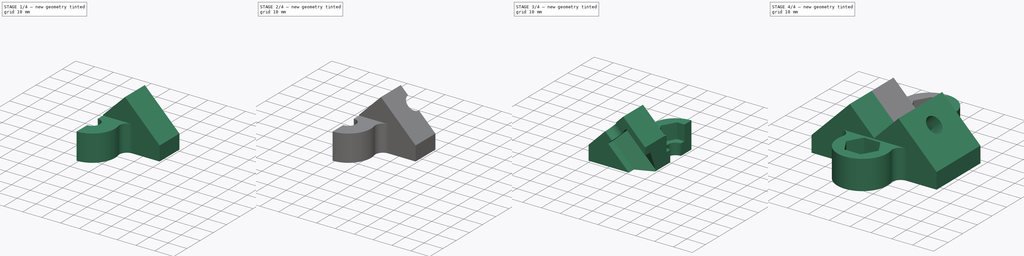
[diagram: build sequence overview — one tinted view per stage of 4, left to right]
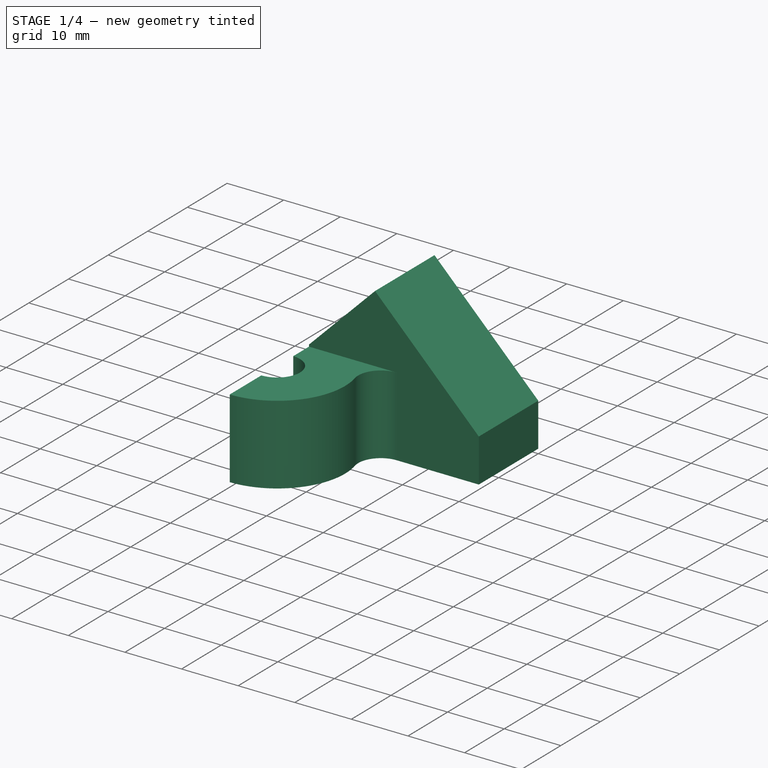
[diagram: stage 1 of 4 — iso view after this stage's code; geometry added in this stage tinted green]
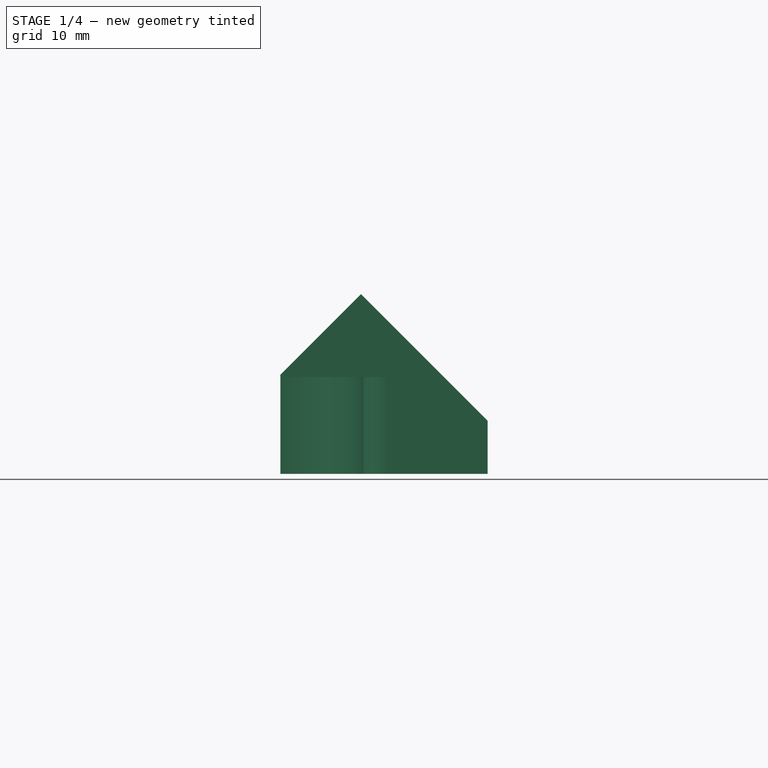
[diagram: stage 1 of 4 — front view after this stage's code; geometry added in this stage tinted green]
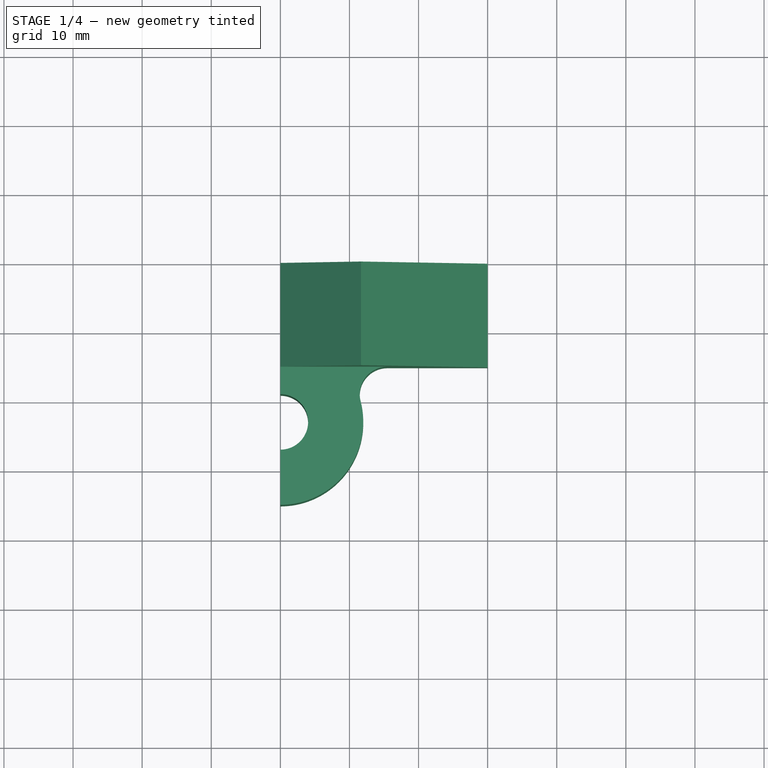
[diagram: stage 1 of 4 — top view after this stage's code; geometry added in this stage tinted green]
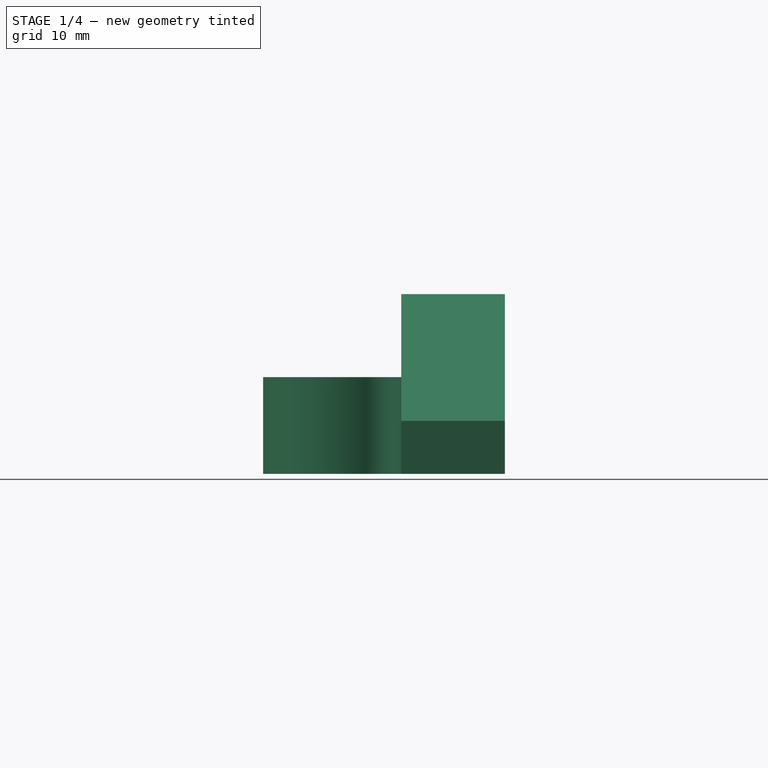
[diagram: stage 1 of 4 — right view after this stage's code; geometry added in this stage tinted green]
FCSTD DOCUMENT  (FreeCAD 0.20R29410 (Git))
Label: TrainConnectorHalfReadyWIthMountings
License: All rights reserved
LicenseURL: http://en.wikipedia.org/wiki/All_rights_reserved
objects: Sketcher::SketchObject×5, Part::Mirroring×3, PartDesign::Pad×2, PartDesign::Plane×2, PartDesign::Pocket×2, PartDesign::Hole×1, PartDesign::Body×1, Part::MultiFuse×1
note: 22 computed .brp shape members not serialized (recipe doc carries the construction recipe); baked Part::Feature solids carry a one-line shape summary decoded from their .brp

FEATURE [Sketcher::SketchObject] Sketch
  FullyConstrained = true
  MapMode = 5
  Placement = pos=(0,0,0) rot=(1,0,0;1.5708rad)
  Support = -> [XZ_Plane]
  sketch-geometry (8):
    g0: LineSegment StartX=30 StartY=7.66726 StartZ=0 EndX=11.6673 EndY=26 EndZ=0
    g1: LineSegment StartX=11.6673 StartY=26 StartZ=0 EndX=0 EndY=14.3327 EndZ=0
    g2: LineSegment StartX=0 StartY=0 StartZ=0 EndX=30 EndY=0 EndZ=0
    g3: LineSegment StartX=0 StartY=14.3327 StartZ=0 EndX=0 EndY=0 EndZ=0
    g4: LineSegment StartX=0 StartY=16.4541 StartZ=0 EndX=10.6066 EndY=27.0607 EndZ=0
    g5: LineSegment StartX=0 StartY=16.4541 StartZ=0 EndX=-10.6066 EndY=27.0607 EndZ=0
    g6: LineSegment StartX=30 StartY=7.66726 StartZ=0 EndX=30 EndY=0 EndZ=0
    g7: LineSegment StartX=10.6066 StartY=27.0607 StartZ=0 EndX=11.6673 EndY=26 EndZ=0
  constraints (22):
    c: Coincident(g0,g1)
    c: Angle(g-2,g1) = 2.35619
    c: Perpendicular(g0,g1)
    c: Horizontal(g2)
    c: Coincident(g3,g1)
    c: Vertical(g3)
    c: DistanceY(g2,g0) = 26
    c: Coincident(g3,g2)
    c: Parallel(g1,g4)
    c: PointOnObject(g4,g-2)
    c: Coincident(g5,g4)
    c: Perpendicular(g2,g6) = 4.71239
    c: Coincident(g0,g6)
    c: DistanceX(g2,g2) = 30
    c: Perpendicular(g5,g4)
    c: Equal(g4,g5)
    c: Coincident(g7,g4)
    c: Coincident(g7,g0)
    c: Perpendicular(g7,g4)
    c: Distance(g7) = 1.5
    c: Distance(g4) = 15
    c: Coincident(g2,g-1)
FEATURE [PartDesign::Pad] Pad
  Direction = (0,-1,-2e-16)
  Length = 15
  Length2 = 10
  Placement = pos=(0,0,0) rot=(1,0,0;1.5708rad)
  Profile = -> Sketch
  ReferenceAxis = -> Sketch [N_Axis]
  Type = 0
FEATURE [Sketcher::SketchObject] Sketch001
  ExternalGeometry = -> [Pad]
  FullyConstrained = true
  MapMode = 5
  Support = -> [XY_Plane]
  sketch-geometry (6):
    g0: ArcOfCircle CenterX=0 CenterY=-23 CenterZ=0 NormalX=0 NormalY=0 NormalZ=1 AngleXU=0 Radius=4.02 StartAngle=4.71239 EndAngle=7.85398
    g1: ArcOfCircle CenterX=0 CenterY=-23 CenterZ=0 NormalX=0 NormalY=0 NormalZ=1 AngleXU=0 Radius=12 StartAngle=4.71239 EndAngle=6.53587
    g2: ArcOfCircle CenterX=15.4919 CenterY=-19 CenterZ=0 NormalX=0 NormalY=0 NormalZ=1 AngleXU=0 Radius=4 StartAngle=1.5708 EndAngle=3.39427
    g3: LineSegment StartX=1.2e-15 StartY=-18.98 StartZ=0 EndX=0 EndY=-15 EndZ=0
    g4: LineSegment StartX=-2.2e-15 StartY=-35 StartZ=0 EndX=-7e-16 EndY=-27.02 EndZ=0
    g5: LineSegment StartX=0 StartY=-15 StartZ=0 EndX=15.4919 EndY=-15 EndZ=0
  constraints (17):
    c: PointOnObject(g0,g-2)
    c: PointOnObject(g0,g-2)
    c: PointOnObject(g0,g-2)
    c: Radius(g0) = 4.02
    c: Coincident(g1,g0)
    c: PointOnObject(g1,g-2)
    c: DistanceY(g1,g0) = 12
    c: DistanceY(g0,g-3) = 8
    c: Tangent(g2,g-4) = -1.5708
    c: Tangent(g2,g1) = 1.5708
    c: Radius(g2) = 4
    c: Coincident(g3,g0)
    c: Coincident(g3,g-3)
    c: Coincident(g4,g1)
    c: Coincident(g4,g0)
    c: Coincident(g5,g3)
    c: Coincident(g5,g2)
FEATURE [PartDesign::Pad] Pad001
  BaseFeature = -> Pad
  Direction = (0,0,1)
  Length = 14
  Length2 = 10
  Placement = pos=(0,0,0) rot=(1,0,0;1.5708rad)
  Profile = -> Sketch001
  ReferenceAxis = -> Sketch001 [N_Axis]
  Type = 0
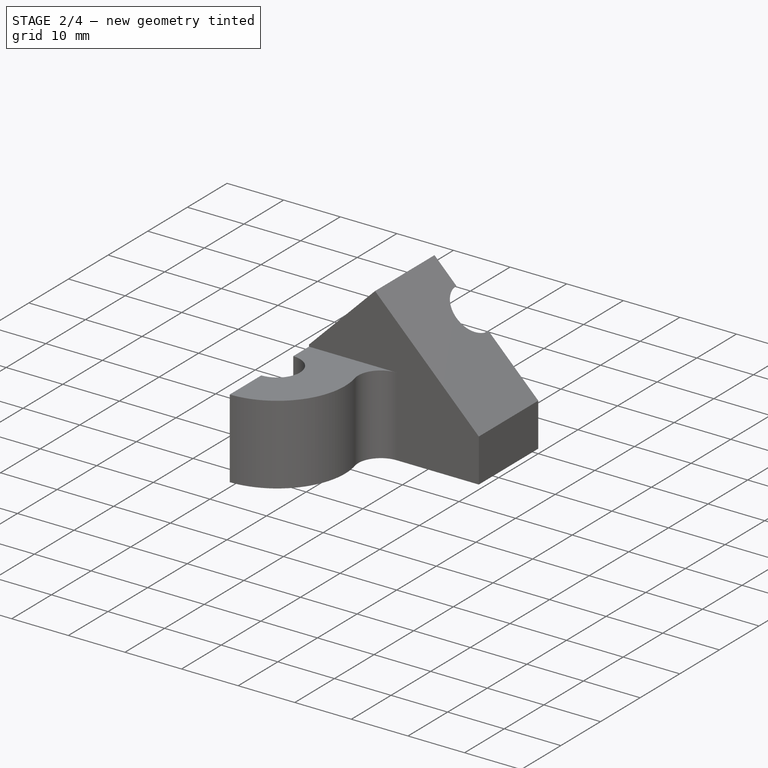
[diagram: stage 2 of 4 — iso view after this stage's code; geometry added in this stage tinted green]
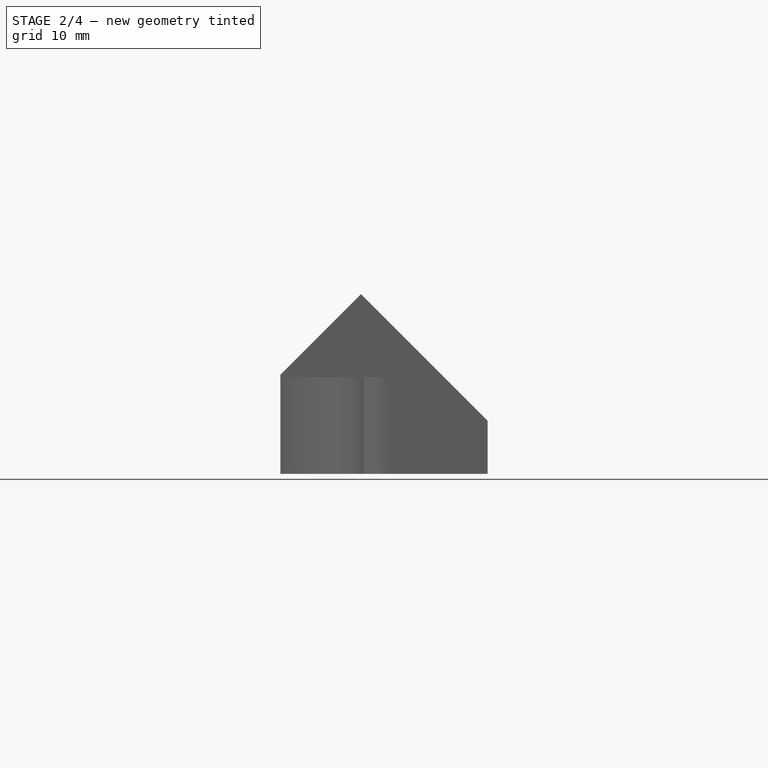
[diagram: stage 2 of 4 — front view after this stage's code; geometry added in this stage tinted green]
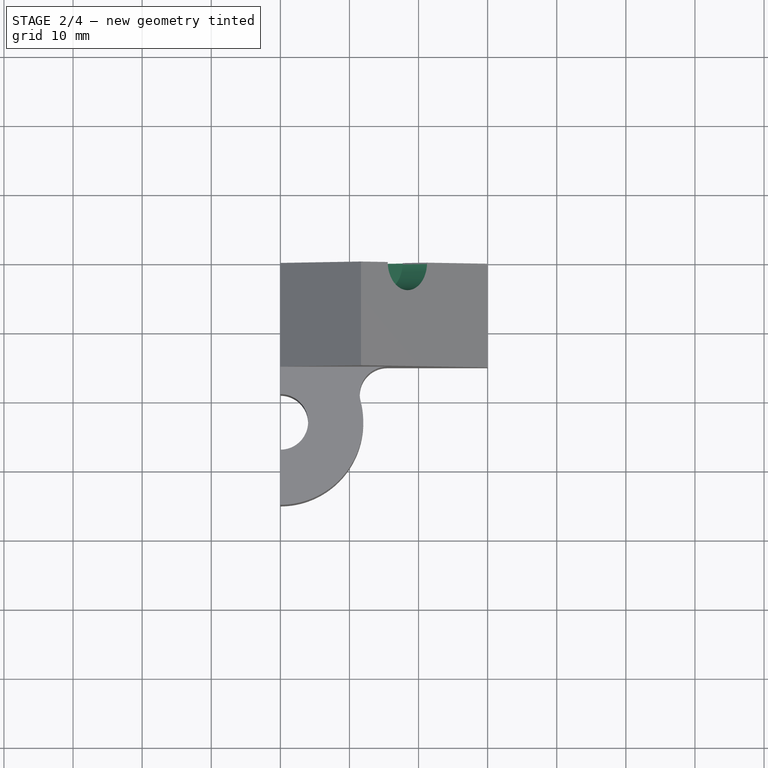
[diagram: stage 2 of 4 — top view after this stage's code; geometry added in this stage tinted green]
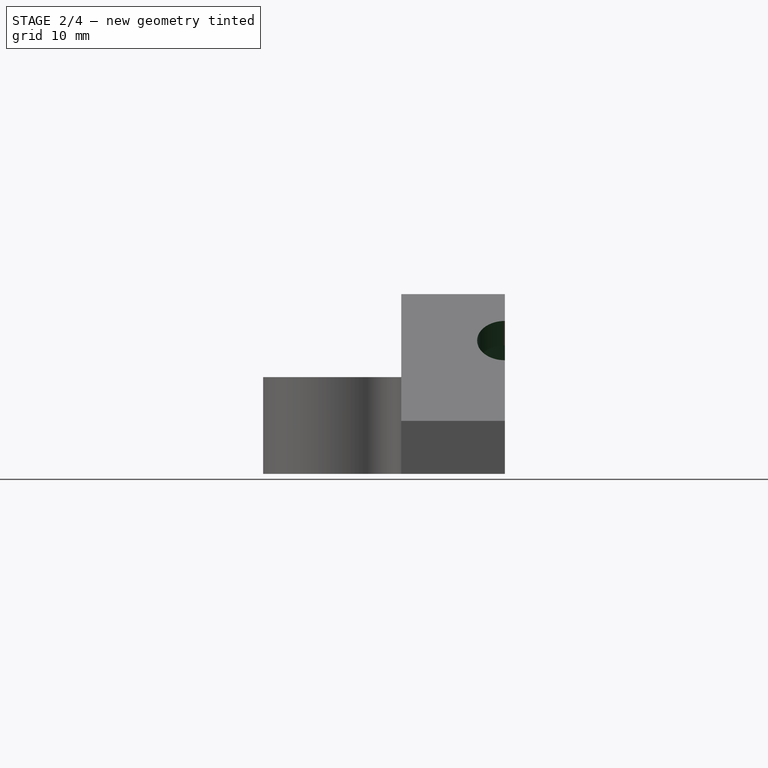
[diagram: stage 2 of 4 — right view after this stage's code; geometry added in this stage tinted green]
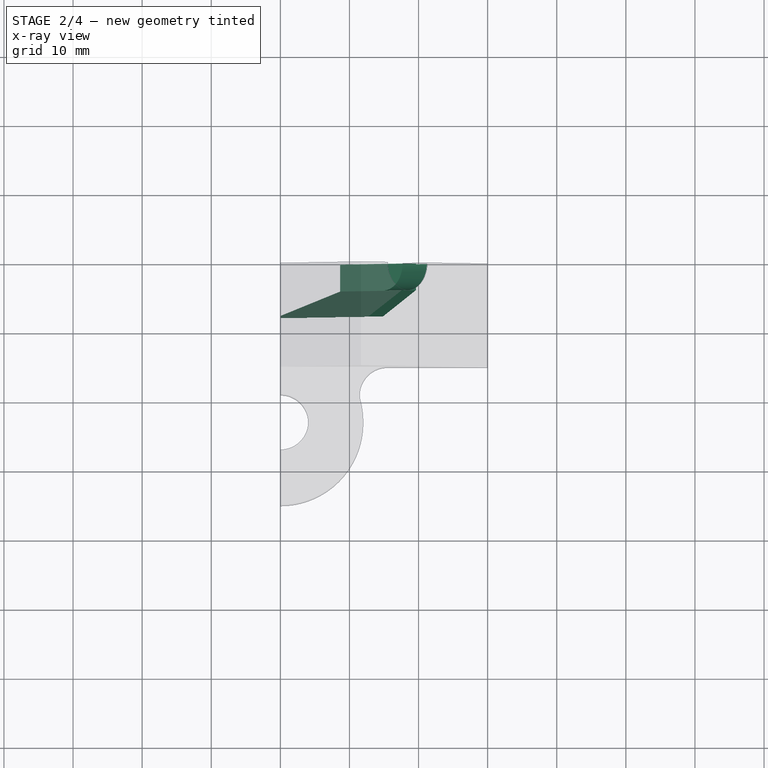
[diagram: stage 2 of 4 — x-ray composite at the top view; earlier geometry ghosted, this stage's added geometry solid]
FEATURE [PartDesign::Plane] DatumPlane
  Length = 88.3656
  MapMode = 5
  Placement = pos=(18.8336,-4.2e-15,18.8336) rot=(0.382683,0,0.92388;3.14159rad)
  ResizeMode = 0
  Support = -> [Pad001]
  Width = 73.4122
FEATURE [Sketcher::SketchObject] Sketch002
  ExternalGeometry = -> [Pad001]
  FullyConstrained = true
  MapMode = 5
  Placement = pos=(18.8336,-4.2e-15,18.8336) rot=(0.382683,0,0.92388;3.14159rad)
  Support = -> [DatumPlane]
  sketch-geometry (1):
    g0: Circle CenterX=0.634776 CenterY=0 CenterZ=0 NormalX=0 NormalY=0 NormalZ=1 AngleXU=0 Radius=4.02
  constraints (3):
    c: PointOnObject(g0,g-1)
    c: Radius(g0) = 4.02
    c: Distance(g0,g-3) = 9.5
FEATURE [PartDesign::Hole] Hole
  BaseFeature = -> Pad001
  CustomThreadClearance = 0
  Depth = 112.443
  DepthType = 1
  Diameter = 8.04
  DrillForDepth = false
  DrillPoint = 1
  DrillPointAngle = 118
  HoleCutCountersinkAngle = 90
  HoleCutCustomValues = false
  HoleCutDepth = 0
  HoleCutDiameter = 0
  HoleCutType = 0
  ModelThread = false
  Placement = pos=(0,0,0) rot=(1,0,0;1.5708rad)
  Profile = -> Sketch002
  Tapered = false
  TaperedAngle = 90
  ThreadClass = 0
  ThreadDepth = 112.443
  ThreadDepthType = 0
  ThreadDirection = 0
  ThreadFit = 0
  ThreadSize = 0
  ThreadType = 0
  Threaded = false
  UseCustomThreadClearance = false
FEATURE [PartDesign::Plane] DatumPlane001
  AttachmentOffset = pos=(0,0,-5) rot=(0,0,1;0rad)
  Length = 88.3656
  MapMode = 5
  Placement = pos=(15.2981,-3.4e-15,15.2981) rot=(0.382683,0,0.92388;3.14159rad)
  ResizeMode = 0
  Support = -> [Hole]
  Width = 73.4122
FEATURE [Sketcher::SketchObject] Sketch003
  ExternalGeometry = -> [Hole]
  FullyConstrained = true
  MapMode = 5
  Placement = pos=(15.2981,-3.4e-15,15.2981) rot=(0.382683,0,0.92388;3.14159rad)
  Support = -> [DatumPlane001]
  sketch-geometry (7):
    g0: LineSegment StartX=7.38478 StartY=3.89711 StartZ=0 EndX=0.634776 EndY=7.79423 EndZ=0
    g1: LineSegment StartX=0.634776 StartY=7.79423 StartZ=0 EndX=-6.11522 EndY=3.89711 EndZ=0
    g2: LineSegment StartX=-6.11522 StartY=3.89711 StartZ=0 EndX=-6.11522 EndY=-3.89711 EndZ=0
    g3: LineSegment StartX=-6.11522 StartY=-3.89711 StartZ=0 EndX=0.634776 EndY=-7.79423 EndZ=0
    g4: LineSegment StartX=0.634776 StartY=-7.79423 StartZ=0 EndX=7.38478 EndY=-3.89711 EndZ=0
    g5: LineSegment StartX=7.38478 StartY=-3.89711 StartZ=0 EndX=7.38478 EndY=3.89711 EndZ=0
    g6: Circle CenterX=0.634776 CenterY=0 CenterZ=0 NormalX=0 NormalY=0 NormalZ=1 AngleXU=0 Radius=7.79423
  constraints (16):
    c: Coincident(g0,g1)
    c: Coincident(g1,g2)
    c: Coincident(g2,g3)
    c: Coincident(g3,g4)
    c: Coincident(g4,g5)
    c: Coincident(g5,g0)
    c: Equal(g0, g1-g5) x5
    c: PointOnObject(g0,g6)
    c: PointOnObject(g1,g6)
    c: PointOnObject(g2,g6)
    c: PointOnObject(g3,g6)
    c: PointOnObject(g4,g6)
    c: PointOnObject(g5,g6)
    c: Coincident(g6,g-3)
    c: Vertical(g5)
    c: DistanceX(g2,g4) = 13.5
FEATURE [PartDesign::Pocket] Pocket
  BaseFeature = -> Hole
  Direction = (-0.707107,2e-16,-0.707107)
  Length = 5
  Length2 = 5
  Placement = pos=(0,0,0) rot=(1,0,0;1.5708rad)
  Profile = -> Sketch003
  ReferenceAxis = -> Sketch003 [N_Axis]
  Type = 1
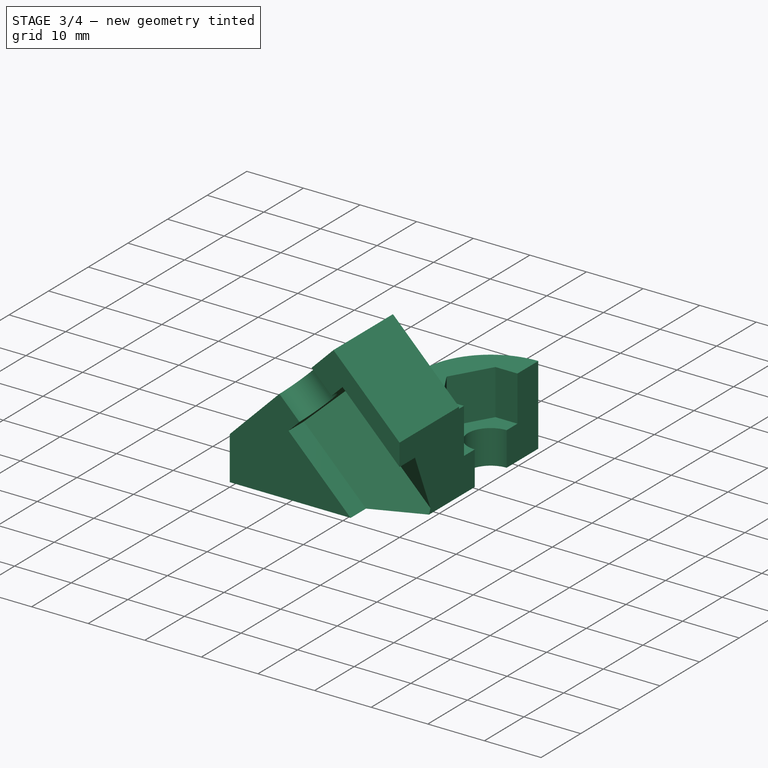
[diagram: stage 3 of 4 — iso view after this stage's code; geometry added in this stage tinted green]
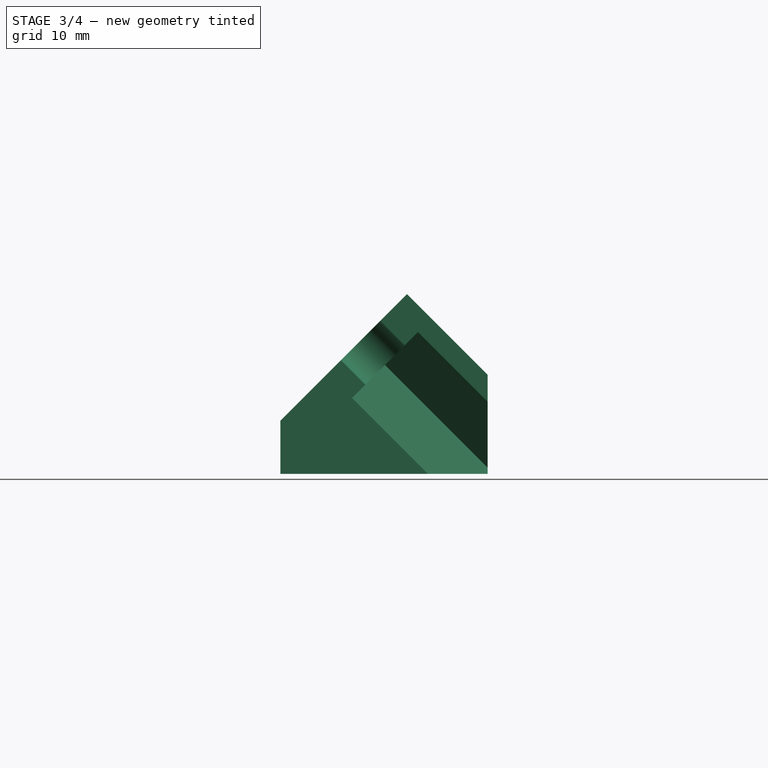
[diagram: stage 3 of 4 — front view after this stage's code; geometry added in this stage tinted green]
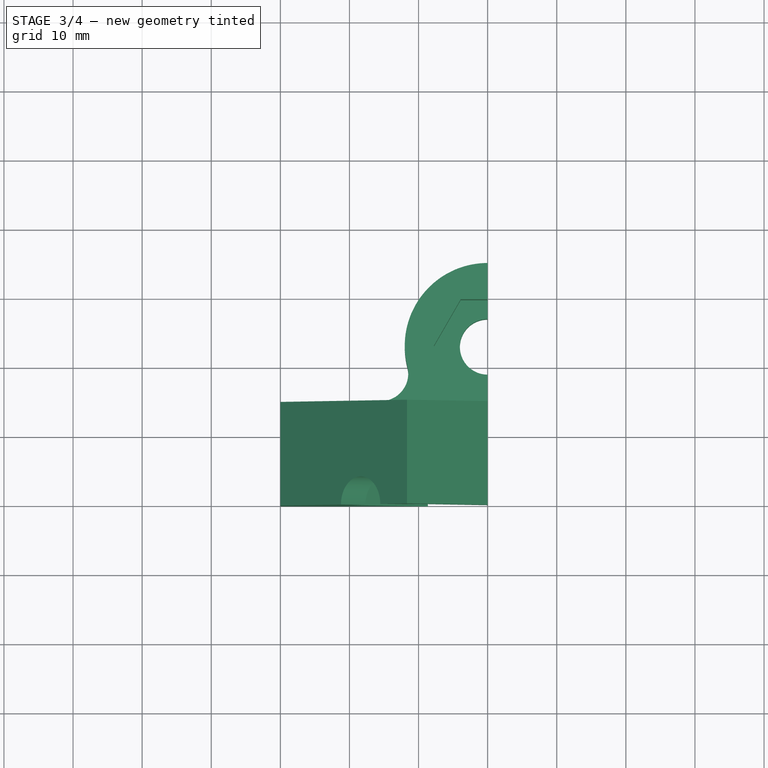
[diagram: stage 3 of 4 — top view after this stage's code; geometry added in this stage tinted green]
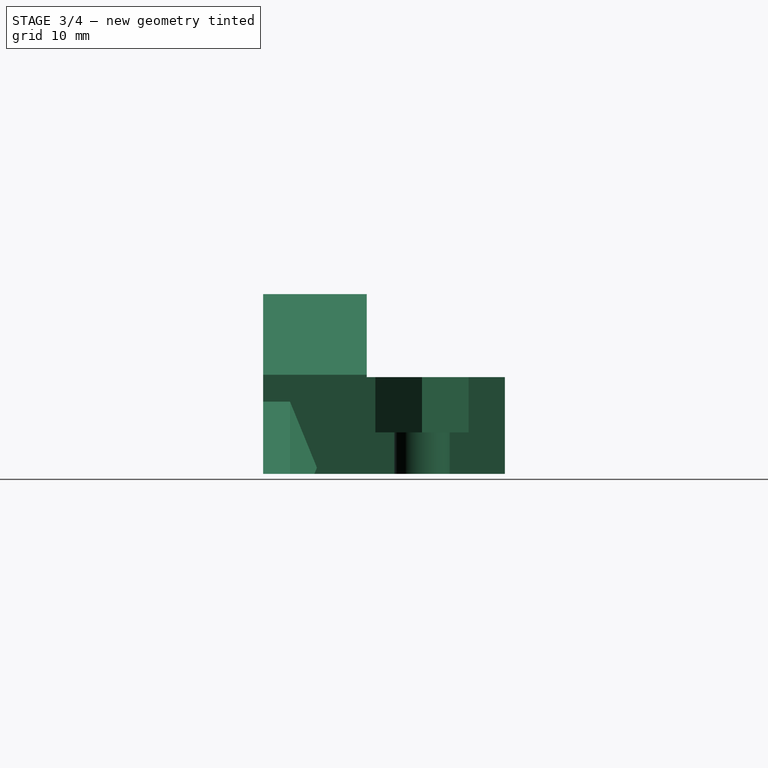
[diagram: stage 3 of 4 — right view after this stage's code; geometry added in this stage tinted green]
FEATURE [Sketcher::SketchObject] Sketch004
  ExternalGeometry = -> [Pocket]
  FullyConstrained = true
  MapMode = 5
  Placement = pos=(0,0,14) rot=(0,0,1;3.14159rad)
  Support = -> [Pocket]
  sketch-geometry (7):
    g0: LineSegment StartX=3.89711 StartY=29.75 StartZ=0 EndX=-3.89711 EndY=29.75 EndZ=0
    g1: LineSegment StartX=-3.89711 StartY=29.75 StartZ=0 EndX=-7.79423 EndY=23 EndZ=0
    g2: LineSegment StartX=-7.79423 StartY=23 StartZ=0 EndX=-3.89711 EndY=16.25 EndZ=0
    g3: LineSegment StartX=-3.89711 StartY=16.25 StartZ=0 EndX=3.89711 EndY=16.25 EndZ=0
    g4: LineSegment StartX=3.89711 StartY=16.25 StartZ=0 EndX=7.79423 EndY=23 EndZ=0
    g5: LineSegment StartX=7.79423 StartY=23 StartZ=0 EndX=3.89711 EndY=29.75 EndZ=0
    g6: Circle CenterX=0 CenterY=23 CenterZ=0 NormalX=0 NormalY=0 NormalZ=1 AngleXU=0 Radius=7.79423
  constraints (16):
    c: Coincident(g0,g1)
    c: Coincident(g1,g2)
    c: Coincident(g2,g3)
    c: Coincident(g3,g4)
    c: Coincident(g4,g5)
    c: Coincident(g5,g0)
    c: Equal(g0, g1-g5) x5
    c: PointOnObject(g0,g6)
    c: PointOnObject(g1,g6)
    c: PointOnObject(g2,g6)
    c: PointOnObject(g3,g6)
    c: PointOnObject(g4,g6)
    c: PointOnObject(g5,g6)
    c: Coincident(g6,g-3)
    c: Horizontal(g0)
    c: DistanceY(g2,g0) = 13.5
FEATURE [PartDesign::Pocket] Pocket001
  BaseFeature = -> Pocket
  Direction = (0,0,-1)
  Length = 8
  Length2 = 5
  Placement = pos=(0,0,0) rot=(1,0,0;1.5708rad)
  Profile = -> Sketch004
  ReferenceAxis = -> Sketch004 [N_Axis]
  Type = 0
FEATURE [PartDesign::Body] Body
  Group = -> [Sketch,Pad,Sketch001,Pad001,DatumPlane,Sketch002,Hole,DatumPlane001,Sketch003,Pocket,Sketch004,Pocket001]
  Origin = -> Origin
  Tip = -> Pocket001
FEATURE [Part::Mirroring] Part__Mirroring  label="Body (Mirror #1)"
  Base = (0,0,0)
  Normal = (1,0,0)
  Source = -> Body
FEATURE [Part::Mirroring] Part__Mirroring002  label="Body (Mirror #3)"
  Base = (0,0,0)
  Normal = (0,1,0)
  Source = -> Part__Mirroring
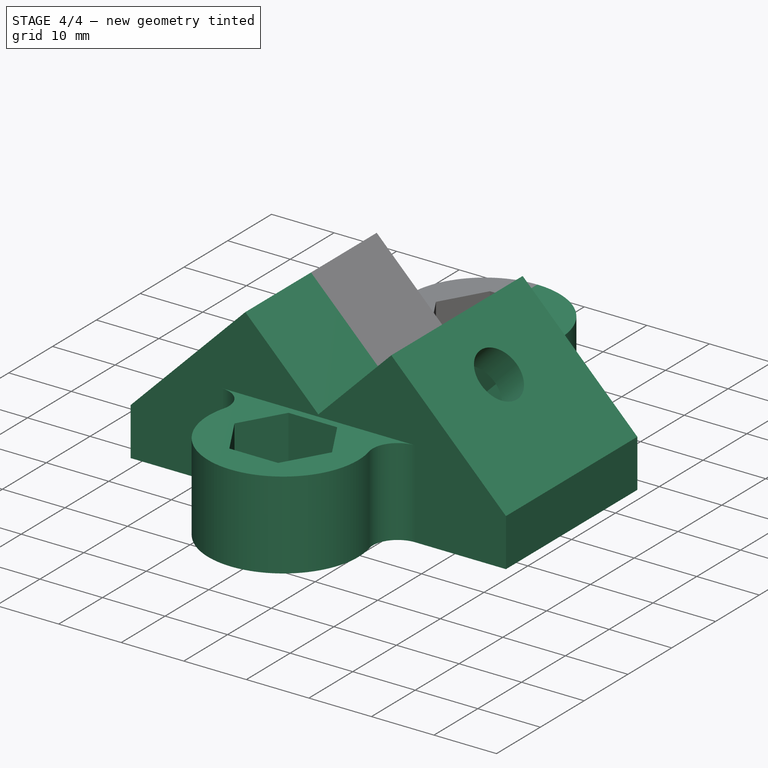
[diagram: stage 4 of 4 — iso view after this stage's code; geometry added in this stage tinted green]
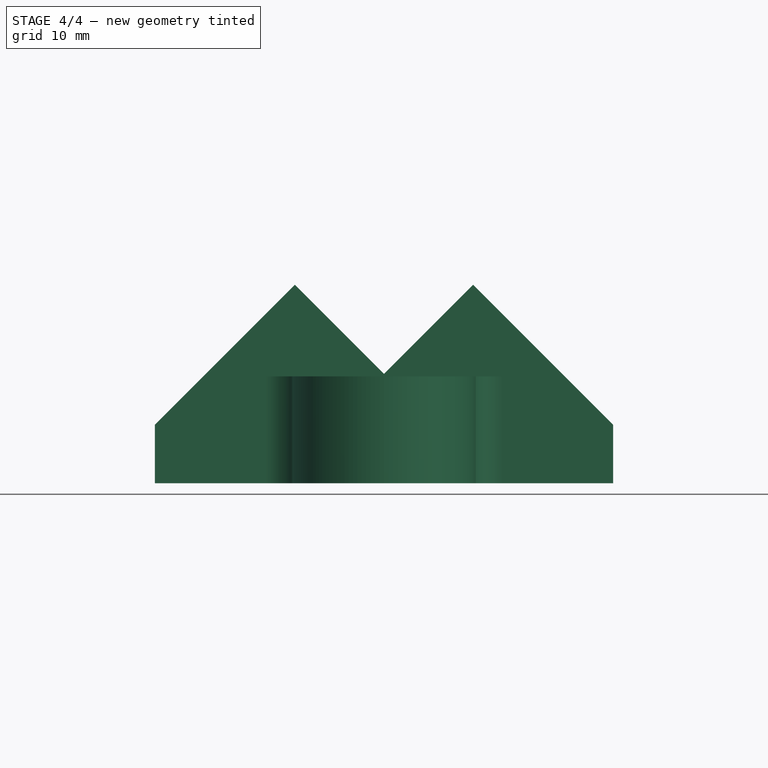
[diagram: stage 4 of 4 — front view after this stage's code; geometry added in this stage tinted green]
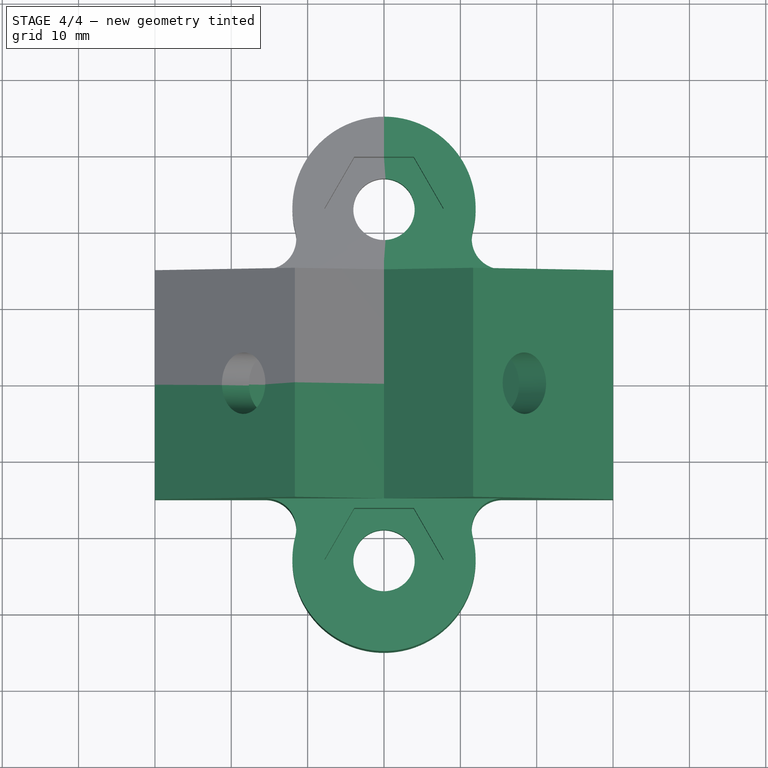
[diagram: stage 4 of 4 — top view after this stage's code; geometry added in this stage tinted green]
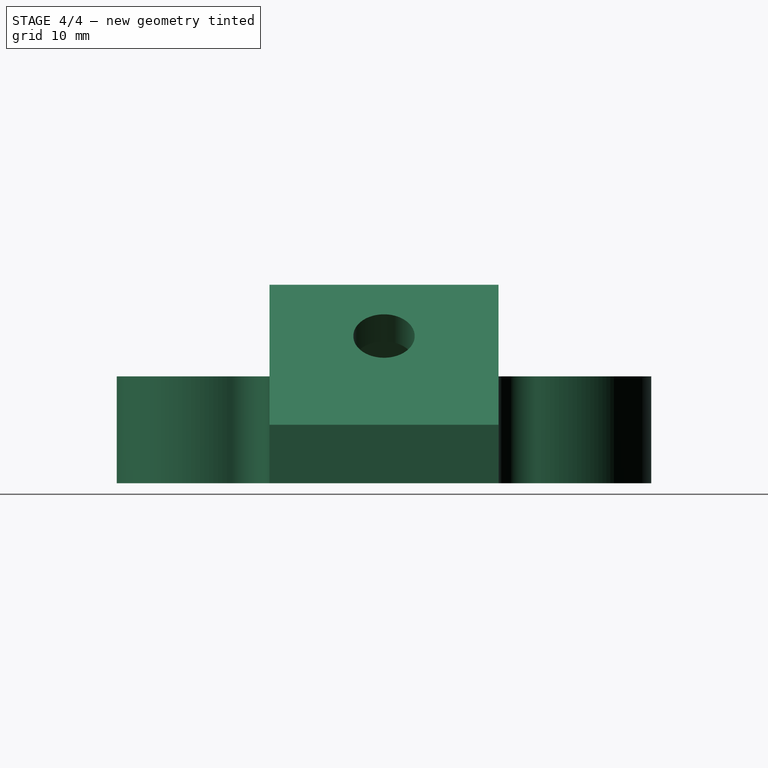
[diagram: stage 4 of 4 — right view after this stage's code; geometry added in this stage tinted green]
FEATURE [Part::Mirroring] Part__Mirroring001  label="Body (Mirror #2)"
  Base = (0,0,0)
  Normal = (0,1,0)
  Source = -> Body
FEATURE [Part::MultiFuse] Fusion
  Shapes = -> [Part__Mirroring001,Body,Part__Mirroring002,Part__Mirroring]
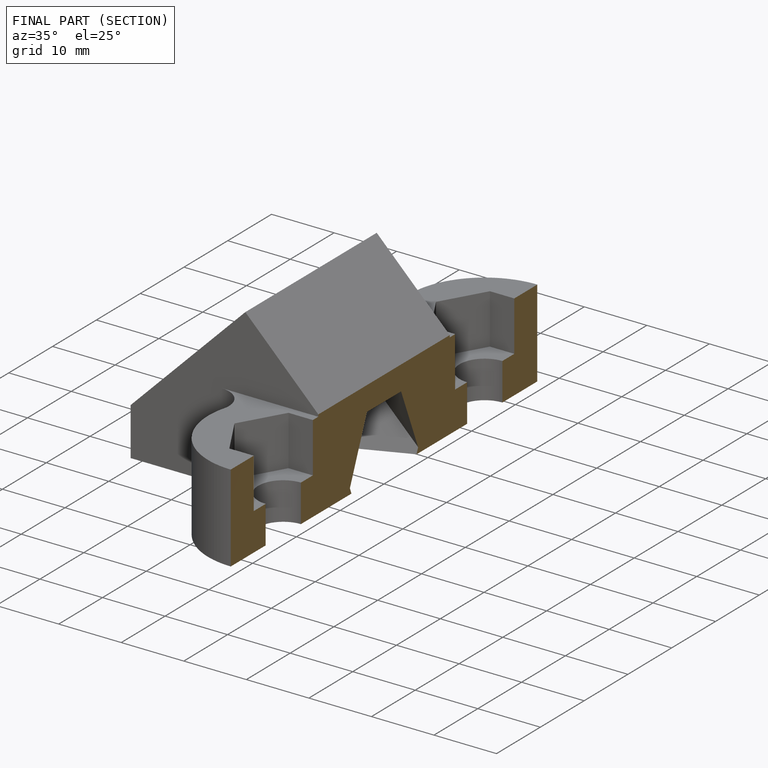
[diagram: finished part — half-section view (interior)]
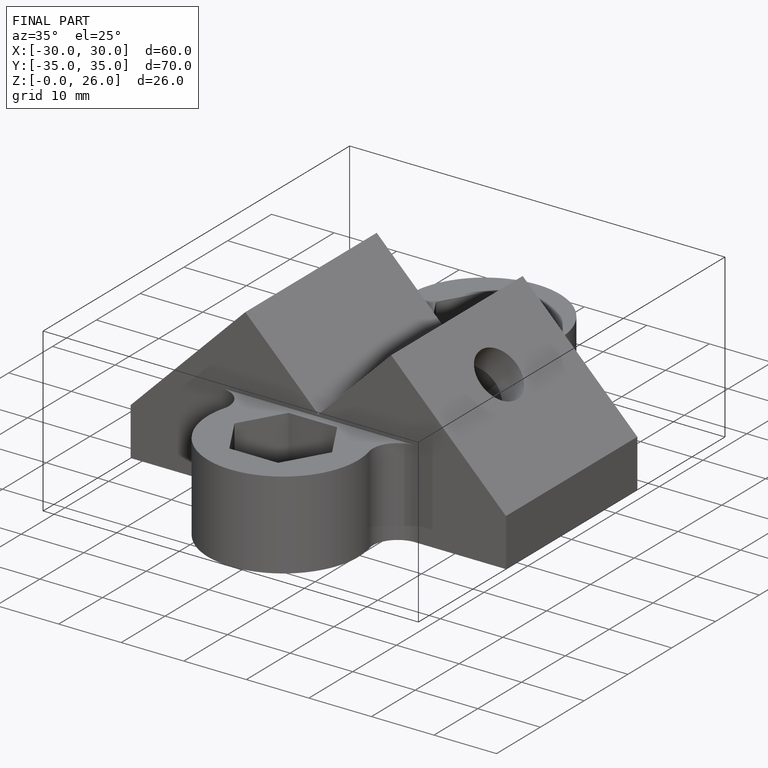
[diagram: finished part — iso view with bounding-box wireframe]
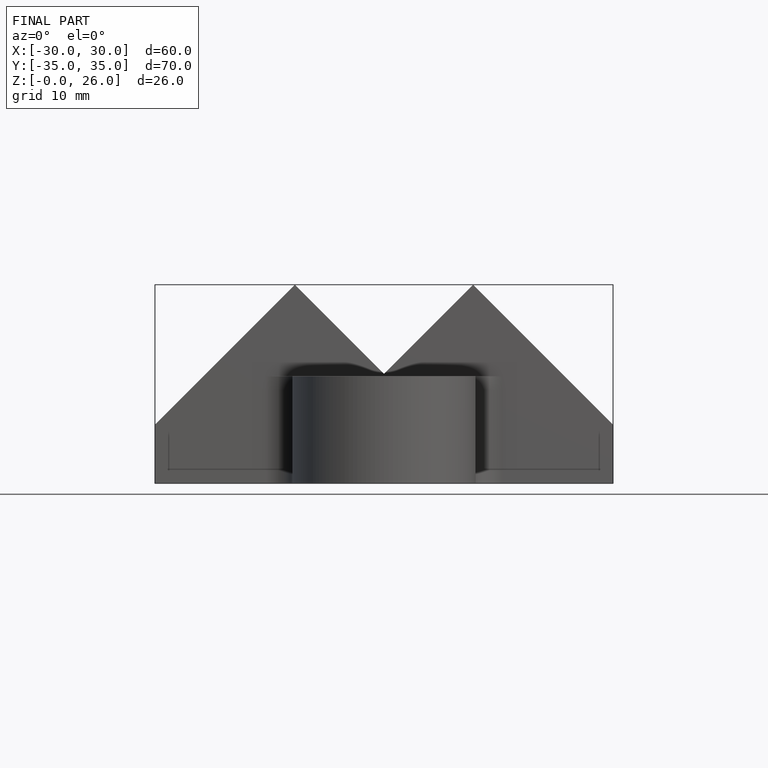
[diagram: finished part — front view with bounding-box wireframe]
